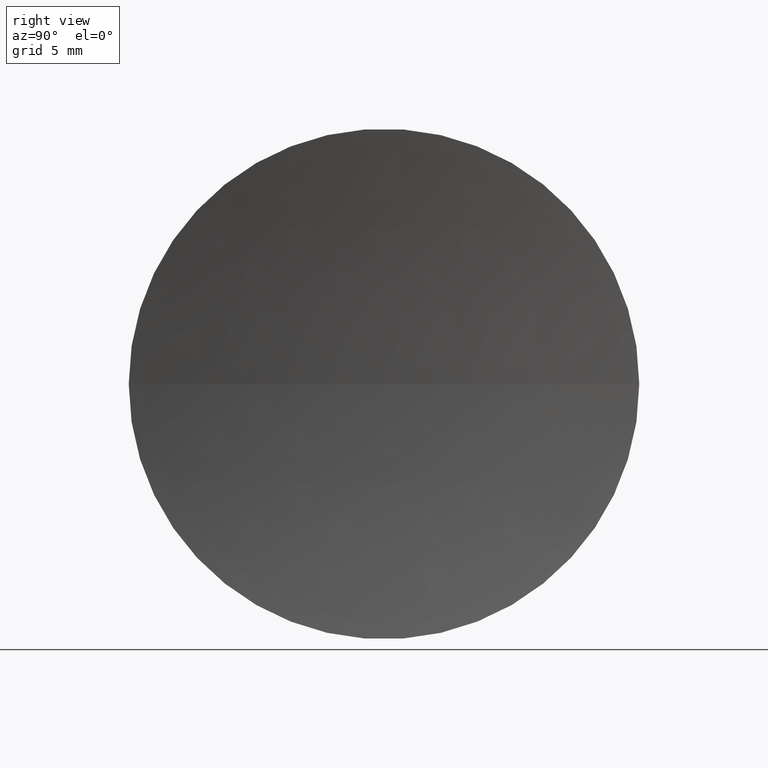
[diagram: clean part render]
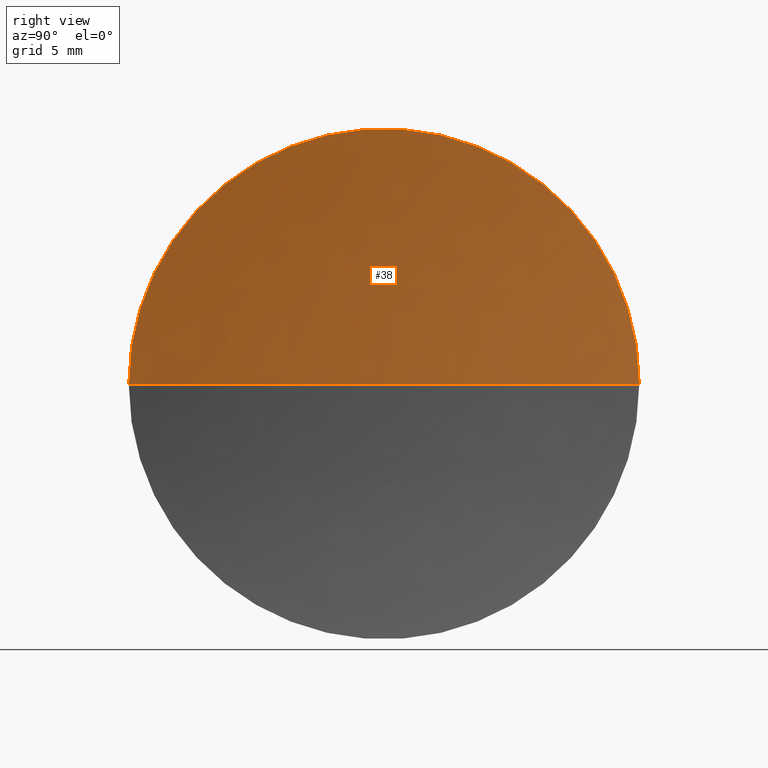
[diagram: same view with one face highlighted and labeled with its STEP entity id]
A machine part, right view. The second image highlights one B-rep face of the part: STEP entity #38.
In plain terms, the highlighted spherical surface has radius 64.2 mm.
Its self-contained STEP definition (entity closure, byte-faithful):
#11 = EDGE_CURVE ( 'NONE', #98, #24, #36, .T. ) ;
#18 = CARTESIAN_POINT ( 'NONE',  ( 191.6121934833099700, 65.21684047094032600, 0.0000000000000000000 ) ) ;
#19 = AXIS2_PLACEMENT_3D ( 'NONE', #51, #143, #188 ) ;
#20 = DIRECTION ( 'NONE',  ( 0.0000000000000000000, -1.000000000000000000, 0.0000000000000000000 ) ) ;
#22 = CARTESIAN_POINT ( 'NONE',  ( 128.6408507947504100, 77.71684047094034000, 0.0000000000000000000 ) ) ;
#24 = VERTEX_POINT ( 'NONE', #88 ) ;
#27 = VERTEX_POINT ( 'NONE', #45 ) ;
#32 = DIRECTION ( 'NONE',  ( 0.0000000000000000000, 0.0000000000000000000, -1.000000000000000000 ) ) ;
#36 = CIRCLE ( 'NONE', #115, 64.20000000000000300 ) ;
#38 = ADVANCED_FACE ( 'NONE', ( #97 ), #59, .F. ) ;
#43 = EDGE_CURVE ( 'NONE', #27, #98, #109, .T. ) ;
#45 = CARTESIAN_POINT ( 'NONE',  ( 128.6408507947504600, 52.71684047094027600, -1.530808498934191500E-015 ) ) ;
#46 = DIRECTION ( 'NONE',  ( 1.000000000000000000, 0.0000000000000000000, 0.0000000000000000000 ) ) ;
#49 = AXIS2_PLACEMENT_3D ( 'NONE', #18, #32, #152 ) ;
#51 = CARTESIAN_POINT ( 'NONE',  ( 191.6121934833099700, 65.21684047094032600, 0.0000000000000000000 ) ) ;
#57 = EDGE_CURVE ( 'NONE', #27, #24, #68, .T. ) ;
#59 = SPHERICAL_SURFACE ( 'NONE', #49, 64.20000000000000300 ) ;
#64 = DIRECTION ( 'NONE',  ( 0.0000000000000000000, -0.0000000000000000000, 1.000000000000000000 ) ) ;
#68 = CIRCLE ( 'NONE', #19, 64.19999999999998900 ) ;
#69 = EDGE_LOOP ( 'NONE', ( #164, #163, #116 ) ) ;
#71 = AXIS2_PLACEMENT_3D ( 'NONE', #76, #108, #20 ) ;
#76 = CARTESIAN_POINT ( 'NONE',  ( 128.6408507947504300, 65.21684047094034000, 0.0000000000000000000 ) ) ;
#88 = CARTESIAN_POINT ( 'NONE',  ( 127.4121934833099500, 65.21684047094028400, 0.0000000000000000000 ) ) ;
#97 = FACE_OUTER_BOUND ( 'NONE', #69, .T. ) ;
#98 = VERTEX_POINT ( 'NONE', #22 ) ;
#108 = DIRECTION ( 'NONE',  ( -1.000000000000000000, -6.937607244762875000E-016, -0.0000000000000000000 ) ) ;
#109 = CIRCLE ( 'NONE', #71, 12.49999999999999100 ) ;
#115 = AXIS2_PLACEMENT_3D ( 'NONE', #169, #64, #46 ) ;
#116 = ORIENTED_EDGE ( 'NONE', *, *, #11, .F. ) ;
#143 = DIRECTION ( 'NONE',  ( -8.496118506040342700E-032, 1.224646799147353200E-016, -1.000000000000000000 ) ) ;
#152 = DIRECTION ( 'NONE',  ( -8.646596764993431500E-016, 1.000000000000000000, 0.0000000000000000000 ) ) ;
#163 = ORIENTED_EDGE ( 'NONE', *, *, #57, .T. ) ;
#164 = ORIENTED_EDGE ( 'NONE', *, *, #43, .F. ) ;
#169 = CARTESIAN_POINT ( 'NONE',  ( 191.6121934833099700, 65.21684047094032600, 0.0000000000000000000 ) ) ;
#188 = DIRECTION ( 'NONE',  ( 0.0000000000000000000, 1.000000000000000000, 1.224646799147353700E-016 ) ) ;